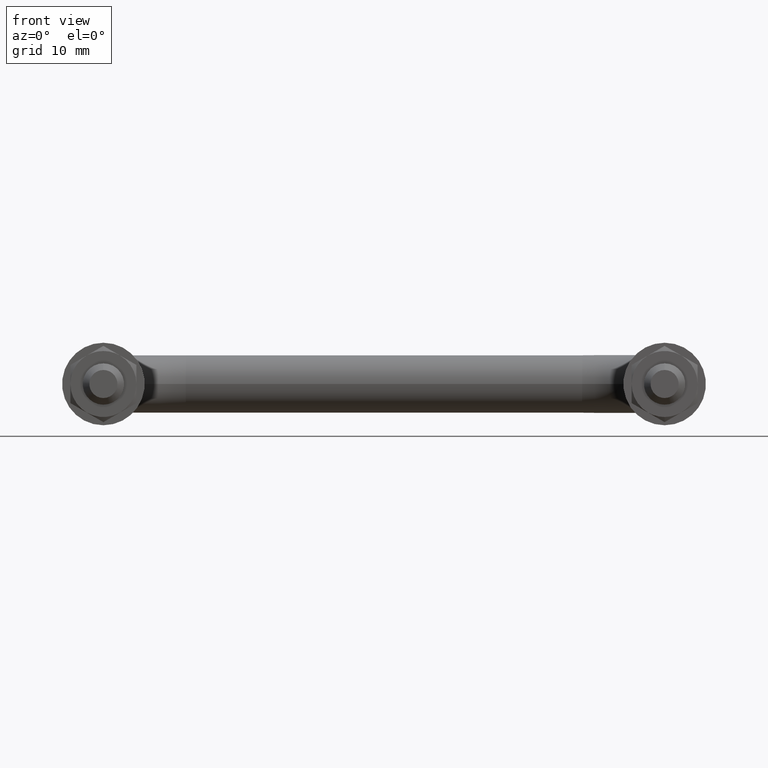
[diagram: clean part render]
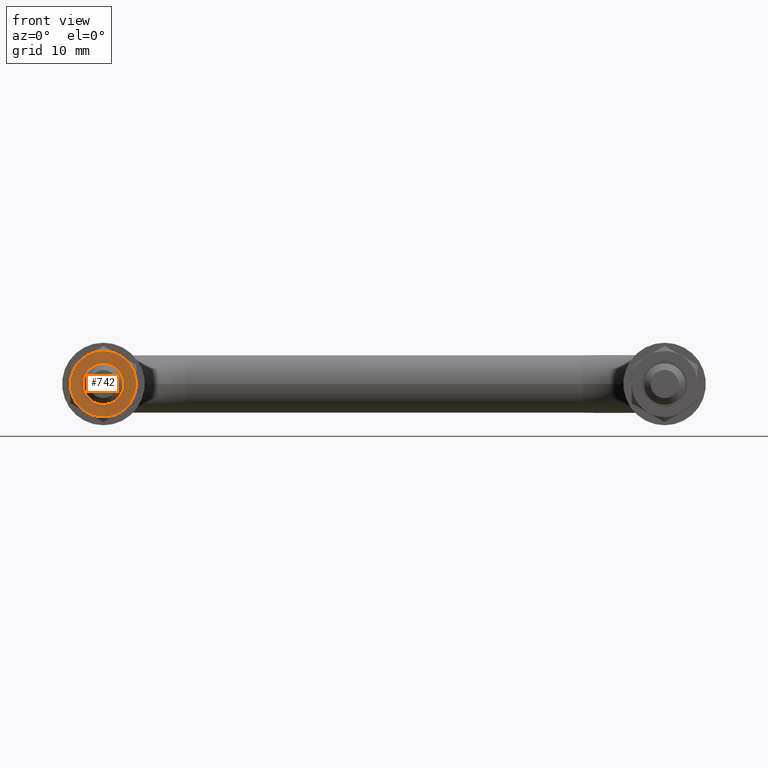
[diagram: same view with one face highlighted and labeled with its STEP entity id]
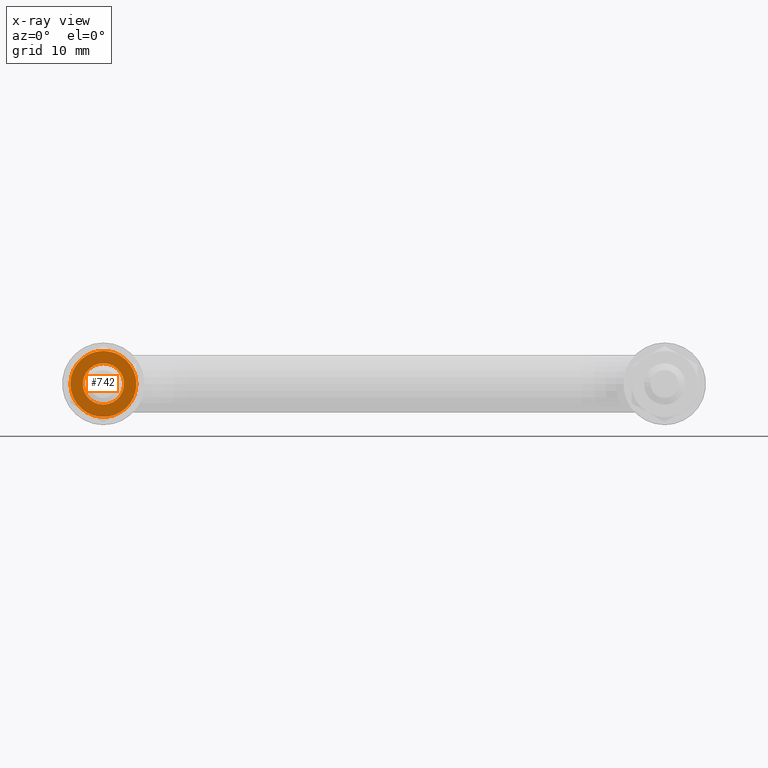
[diagram: x-ray of the same camera — body ghosted, the highlighted face saturated]
A machine part, front view. The second image highlights one B-rep face of the part: STEP entity #742.
The next image is the same camera in x-ray: the body ghosted, the highlighted face saturated — about 0% of this face is hidden behind the body in this view.
In plain terms, the highlighted planar face has unit normal (0, -1, -0).
Its self-contained STEP definition (entity closure, byte-faithful):
#33 = EDGE_CURVE ( 'NONE', #563, #276, #1435, .T. ) ;
#42 = AXIS2_PLACEMENT_3D ( 'NONE', #1396, #386, #1251 ) ;
#65 = PLANE ( 'NONE',  #272 ) ;
#68 = EDGE_CURVE ( 'NONE', #330, #198, #1795, .T. ) ;
#76 = CARTESIAN_POINT ( 'NONE',  ( 0.0000000000000000000, 8.300000000000000700, 0.0000000000000000000 ) ) ;
#84 = CARTESIAN_POINT ( 'NONE',  ( 0.0000000000000000000, 8.300000000000000700, -1.959370166115805200E-015 ) ) ;
#91 = CARTESIAN_POINT ( 'NONE',  ( -1.999999300624725000, 8.300000000000000700, 3.464102018922175400 ) ) ;
#99 = ORIENTED_EDGE ( 'NONE', *, *, #656, .F. ) ;
#155 = DIRECTION ( 'NONE',  ( 0.0000000000000000000, 0.0000000000000000000, 1.000000000000000000 ) ) ;
#158 = DIRECTION ( 'NONE',  ( -0.0000000000000000000, -1.000000000000000000, -0.0000000000000000000 ) ) ;
#177 = VERTEX_POINT ( 'NONE', #994 ) ;
#179 = CIRCLE ( 'NONE', #1537, 4.000000000000000000 ) ;
#181 = AXIS2_PLACEMENT_3D ( 'NONE', #76, #1211, #878 ) ;
#186 = EDGE_LOOP ( 'NONE', ( #741, #245 ) ) ;
#194 = CARTESIAN_POINT ( 'NONE',  ( 0.0000000000000000000, 8.300000000000000700, -1.959370166115805200E-015 ) ) ;
#198 = VERTEX_POINT ( 'NONE', #1541 ) ;
#211 = DIRECTION ( 'NONE',  ( -0.0000000000000000000, -1.000000000000000000, -0.0000000000000000000 ) ) ;
#227 = ORIENTED_EDGE ( 'NONE', *, *, #1644, .F. ) ;
#235 = EDGE_LOOP ( 'NONE', ( #99, #519, #1225, #1370, #952, #227, #1468 ) ) ;
#245 = ORIENTED_EDGE ( 'NONE', *, *, #748, .T. ) ;
#272 = AXIS2_PLACEMENT_3D ( 'NONE', #455, #737, #780 ) ;
#276 = VERTEX_POINT ( 'NONE', #1575 ) ;
#281 = FACE_BOUND ( 'NONE', #186, .T. ) ;
#330 = VERTEX_POINT ( 'NONE', #442 ) ;
#372 = CIRCLE ( 'NONE', #728, 4.000000000000000000 ) ;
#386 = DIRECTION ( 'NONE',  ( -0.0000000000000000000, -1.000000000000000000, -0.0000000000000000000 ) ) ;
#442 = CARTESIAN_POINT ( 'NONE',  ( 4.000000000000000000, 8.300000000000000700, -1.959370166115805200E-015 ) ) ;
#455 = CARTESIAN_POINT ( 'NONE',  ( 0.0000000000000000000, 8.300000000000000700, 0.0000000000000000000 ) ) ;
#490 = AXIS2_PLACEMENT_3D ( 'NONE', #1453, #1161, #155 ) ;
#501 = DIRECTION ( 'NONE',  ( 0.0000000000000000000, 0.0000000000000000000, -1.000000000000000000 ) ) ;
#519 = ORIENTED_EDGE ( 'NONE', *, *, #1328, .F. ) ;
#563 = VERTEX_POINT ( 'NONE', #765 ) ;
#572 = DIRECTION ( 'NONE',  ( -0.0000000000000000000, -1.000000000000000000, -0.0000000000000000000 ) ) ;
#579 = CIRCLE ( 'NONE', #1354, 4.000000000000000000 ) ;
#631 = DIRECTION ( 'NONE',  ( 0.0000000000000000000, 0.0000000000000000000, 1.000000000000000000 ) ) ;
#643 = CIRCLE ( 'NONE', #181, 2.500000000000000000 ) ;
#648 = CARTESIAN_POINT ( 'NONE',  ( 0.0000000000000000000, 8.300000000000000700, -1.959370166115805200E-015 ) ) ;
#656 = EDGE_CURVE ( 'NONE', #1510, #563, #1770, .T. ) ;
#675 = AXIS2_PLACEMENT_3D ( 'NONE', #194, #211, #844 ) ;
#703 = EDGE_CURVE ( 'NONE', #818, #330, #928, .T. ) ;
#712 = DIRECTION ( 'NONE',  ( 2.664535259100375700E-015, 0.0000000000000000000, 1.000000000000000000 ) ) ;
#728 = AXIS2_PLACEMENT_3D ( 'NONE', #1160, #572, #712 ) ;
#737 = DIRECTION ( 'NONE',  ( -0.0000000000000000000, 1.000000000000000000, 0.0000000000000000000 ) ) ;
#741 = ORIENTED_EDGE ( 'NONE', *, *, #1668, .T. ) ;
#742 = ADVANCED_FACE ( 'NONE', ( #1046, #281 ), #65, .T. ) ;
#748 = EDGE_CURVE ( 'NONE', #177, #1004, #643, .T. ) ;
#765 = CARTESIAN_POINT ( 'NONE',  ( -4.000000000000000000, 8.300000000000000700, -1.959370166115805200E-015 ) ) ;
#780 = DIRECTION ( 'NONE',  ( 1.000000000000000000, 0.0000000000000000000, 0.0000000000000000000 ) ) ;
#785 = CARTESIAN_POINT ( 'NONE',  ( 0.0000000000000000000, 8.300000000000000700, -1.959370166115805200E-015 ) ) ;
#807 = CARTESIAN_POINT ( 'NONE',  ( 0.0000000000000000000, 8.300000000000000700, -2.500000000000000000 ) ) ;
#818 = VERTEX_POINT ( 'NONE', #1083 ) ;
#820 = CIRCLE ( 'NONE', #1032, 2.500000000000000000 ) ;
#844 = DIRECTION ( 'NONE',  ( -1.776356839400250500E-015, 0.0000000000000000000, 1.000000000000000000 ) ) ;
#878 = DIRECTION ( 'NONE',  ( 0.0000000000000000000, 0.0000000000000000000, 1.000000000000000000 ) ) ;
#920 = DIRECTION ( 'NONE',  ( -0.0000000000000000000, -1.000000000000000000, -0.0000000000000000000 ) ) ;
#928 = CIRCLE ( 'NONE', #1577, 4.000000000000000000 ) ;
#952 = ORIENTED_EDGE ( 'NONE', *, *, #1391, .F. ) ;
#994 = CARTESIAN_POINT ( 'NONE',  ( 3.061616997868383100E-016, 8.300000000000000700, 2.500000000000000000 ) ) ;
#1004 = VERTEX_POINT ( 'NONE', #807 ) ;
#1006 = CARTESIAN_POINT ( 'NONE',  ( 0.0000000000000000000, 8.300000000000000700, 0.0000000000000000000 ) ) ;
#1032 = AXIS2_PLACEMENT_3D ( 'NONE', #1006, #158, #1686 ) ;
#1046 = FACE_OUTER_BOUND ( 'NONE', #235, .T. ) ;
#1081 = DIRECTION ( 'NONE',  ( 0.0000000000000000000, 0.0000000000000000000, 1.000000000000000000 ) ) ;
#1083 = CARTESIAN_POINT ( 'NONE',  ( 1.999999300624725000, 8.300000000000000700, -3.464102018922179800 ) ) ;
#1155 = VERTEX_POINT ( 'NONE', #1618 ) ;
#1160 = CARTESIAN_POINT ( 'NONE',  ( 0.0000000000000000000, 8.300000000000000700, -1.959370166115805200E-015 ) ) ;
#1161 = DIRECTION ( 'NONE',  ( -0.0000000000000000000, -1.000000000000000000, -0.0000000000000000000 ) ) ;
#1211 = DIRECTION ( 'NONE',  ( -0.0000000000000000000, -1.000000000000000000, -0.0000000000000000000 ) ) ;
#1225 = ORIENTED_EDGE ( 'NONE', *, *, #68, .F. ) ;
#1251 = DIRECTION ( 'NONE',  ( 0.0000000000000000000, 0.0000000000000000000, 1.000000000000000000 ) ) ;
#1328 = EDGE_CURVE ( 'NONE', #198, #1510, #579, .T. ) ;
#1354 = AXIS2_PLACEMENT_3D ( 'NONE', #84, #920, #1081 ) ;
#1370 = ORIENTED_EDGE ( 'NONE', *, *, #703, .F. ) ;
#1391 = EDGE_CURVE ( 'NONE', #1155, #818, #179, .T. ) ;
#1396 = CARTESIAN_POINT ( 'NONE',  ( 0.0000000000000000000, 8.300000000000000700, -1.959370166115805200E-015 ) ) ;
#1435 = CIRCLE ( 'NONE', #490, 4.000000000000000000 ) ;
#1453 = CARTESIAN_POINT ( 'NONE',  ( 0.0000000000000000000, 8.300000000000000700, -1.959370166115805200E-015 ) ) ;
#1468 = ORIENTED_EDGE ( 'NONE', *, *, #33, .F. ) ;
#1510 = VERTEX_POINT ( 'NONE', #91 ) ;
#1518 = DIRECTION ( 'NONE',  ( 0.0000000000000000000, -1.000000000000000000, 0.0000000000000000000 ) ) ;
#1537 = AXIS2_PLACEMENT_3D ( 'NONE', #785, #1781, #631 ) ;
#1541 = CARTESIAN_POINT ( 'NONE',  ( 1.999999300624725000, 8.300000000000000700, 3.464102018922170100 ) ) ;
#1575 = CARTESIAN_POINT ( 'NONE',  ( -1.999999300624725000, 8.300000000000000700, -3.464102018922175400 ) ) ;
#1577 = AXIS2_PLACEMENT_3D ( 'NONE', #648, #1518, #501 ) ;
#1618 = CARTESIAN_POINT ( 'NONE',  ( 0.0000000000000000000, 8.300000000000000700, -4.000000000000001800 ) ) ;
#1644 = EDGE_CURVE ( 'NONE', #276, #1155, #372, .T. ) ;
#1668 = EDGE_CURVE ( 'NONE', #1004, #177, #820, .T. ) ;
#1686 = DIRECTION ( 'NONE',  ( 0.0000000000000000000, 0.0000000000000000000, 1.000000000000000000 ) ) ;
#1770 = CIRCLE ( 'NONE', #42, 4.000000000000000000 ) ;
#1781 = DIRECTION ( 'NONE',  ( -0.0000000000000000000, -1.000000000000000000, -0.0000000000000000000 ) ) ;
#1795 = CIRCLE ( 'NONE', #675, 4.000000000000000000 ) ;